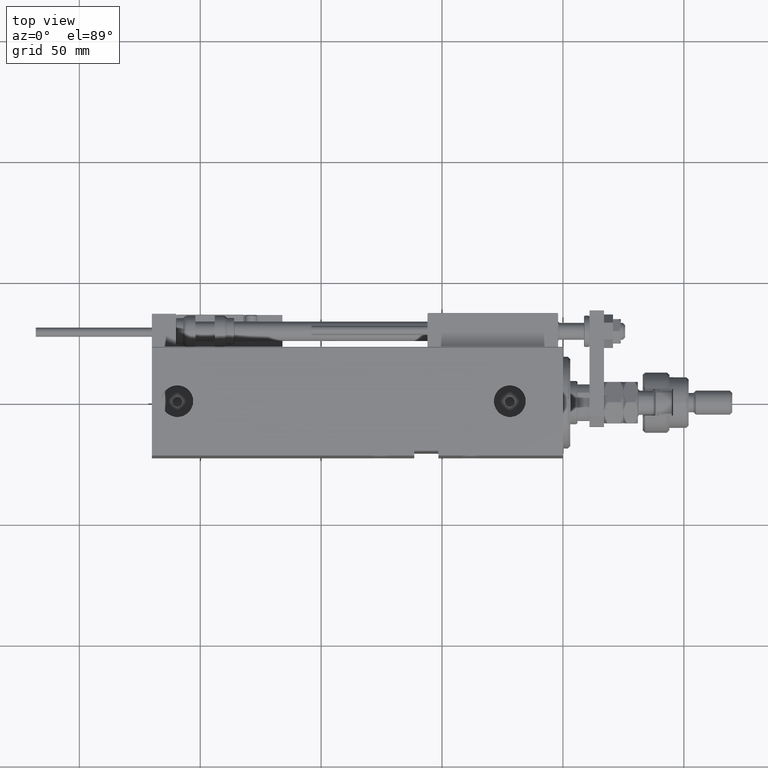
[diagram: clean part render]
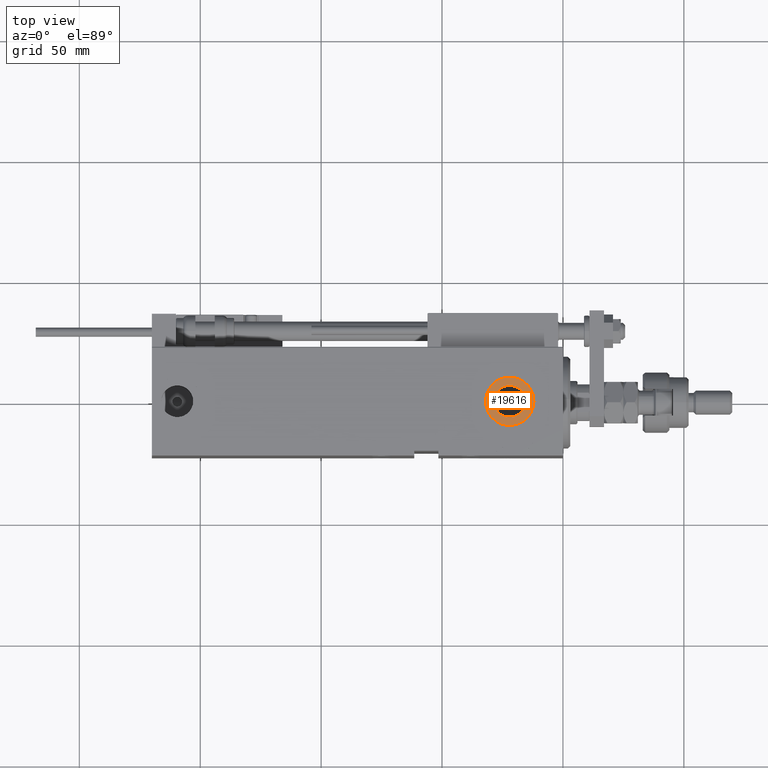
[diagram: same view with one face highlighted and labeled with its STEP entity id]
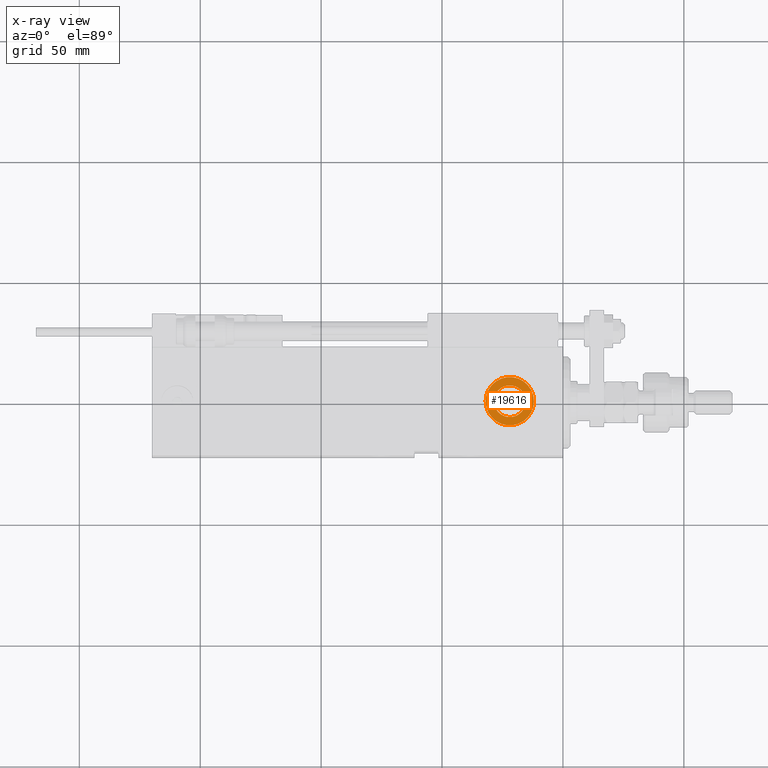
[diagram: x-ray of the same camera — body ghosted, the highlighted face saturated]
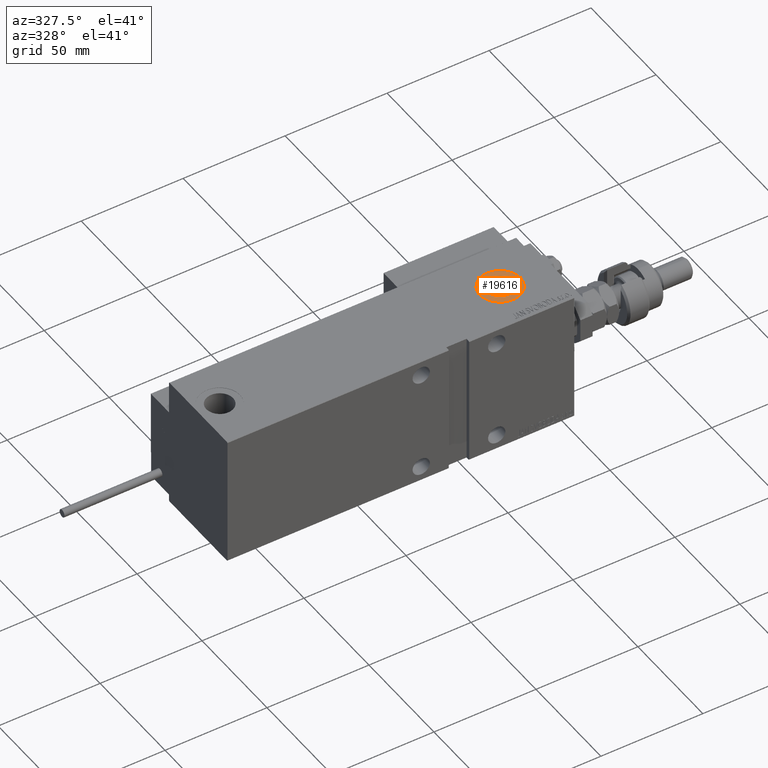
[diagram: same view with one face highlighted and labeled with its STEP entity id]
A machine part, top view. The second image highlights one B-rep face of the part: STEP entity #19616.
The next image is the same camera in x-ray: the body ghosted, the highlighted face saturated — about 0% of this face is hidden behind the body in this view.
A second angle (auxiliary view) of the same face is appended — the face is thin or edge-on in the first view.
In plain terms, the highlighted planar face has unit normal (0, -0, 1).
Its self-contained STEP definition (entity closure, byte-faithful):
#1216 = ORIENTED_EDGE ( 'NONE', *, *, #22655, .T. ) ;
#1376 = CARTESIAN_POINT ( 'NONE',  ( 32.00000000000000000, -5.011423375044110611E-15, 32.39999999999999858 ) ) ;
#1591 = DIRECTION ( 'NONE',  ( 0.000000000000000000, 0.000000000000000000, 1.000000000000000000 ) ) ;
#1870 = AXIS2_PLACEMENT_3D ( 'NONE', #30009, #18560, #38144 ) ;
#3322 = CARTESIAN_POINT ( 'NONE',  ( 22.00000000000000000, -5.011423375044110611E-15, 32.39999999999999858 ) ) ;
#4417 = CIRCLE ( 'NONE', #39075, 6.579999999999999183 ) ;
#4673 = VERTEX_POINT ( 'NONE', #21571 ) ;
#4819 = ORIENTED_EDGE ( 'NONE', *, *, #7926, .T. ) ;
#6473 = CIRCLE ( 'NONE', #21201, 10.00000000000000178 ) ;
#6477 = AXIS2_PLACEMENT_3D ( 'NONE', #46992, #39590, #42649 ) ;
#7926 = EDGE_CURVE ( 'NONE', #50619, #4673, #6473, .T. ) ;
#8612 = DIRECTION ( 'NONE',  ( 1.000000000000000000, 0.000000000000000000, 0.000000000000000000 ) ) ;
#9723 = PLANE ( 'NONE',  #26864 ) ;
#12681 = DIRECTION ( 'NONE',  ( 0.000000000000000000, 0.000000000000000000, 1.000000000000000000 ) ) ;
#14988 = DIRECTION ( 'NONE',  ( 0.000000000000000000, 0.000000000000000000, 1.000000000000000000 ) ) ;
#18560 = DIRECTION ( 'NONE',  ( 0.000000000000000000, 0.000000000000000000, 1.000000000000000000 ) ) ;
#19616 = ADVANCED_FACE ( 'NONE', ( #46672, #51035 ), #9723, .T. ) ;
#20151 = VERTEX_POINT ( 'NONE', #47687 ) ;
#21201 = AXIS2_PLACEMENT_3D ( 'NONE', #3322, #14988, #52242 ) ;
#21571 = CARTESIAN_POINT ( 'NONE',  ( 11.99999999999999822, -3.786776575896758341E-15, 32.39999999999999858 ) ) ;
#22655 = EDGE_CURVE ( 'NONE', #4673, #50619, #36869, .T. ) ;
#26843 = CARTESIAN_POINT ( 'NONE',  ( 15.41999999999999993, -4.205605781205152358E-15, 32.39999999999999858 ) ) ;
#26864 = AXIS2_PLACEMENT_3D ( 'NONE', #42586, #1591, #34713 ) ;
#26996 = CIRCLE ( 'NONE', #1870, 6.579999999999999183 ) ;
#30009 = CARTESIAN_POINT ( 'NONE',  ( 22.00000000000000000, -5.011423375044110611E-15, 32.39999999999999858 ) ) ;
#30720 = ORIENTED_EDGE ( 'NONE', *, *, #48270, .F. ) ;
#32790 = VERTEX_POINT ( 'NONE', #26843 ) ;
#34713 = DIRECTION ( 'NONE',  ( 1.000000000000000000, 0.000000000000000000, -0.000000000000000000 ) ) ;
#36813 = EDGE_LOOP ( 'NONE', ( #43799, #30720 ) ) ;
#36869 = CIRCLE ( 'NONE', #6477, 10.00000000000000178 ) ;
#38144 = DIRECTION ( 'NONE',  ( 1.000000000000000000, 0.000000000000000000, 0.000000000000000000 ) ) ;
#39075 = AXIS2_PLACEMENT_3D ( 'NONE', #53746, #12681, #8612 ) ;
#39590 = DIRECTION ( 'NONE',  ( 0.000000000000000000, 0.000000000000000000, 1.000000000000000000 ) ) ;
#42586 = CARTESIAN_POINT ( 'NONE',  ( 22.00000000000000000, -5.011423375044110611E-15, 32.39999999999999858 ) ) ;
#42649 = DIRECTION ( 'NONE',  ( 1.000000000000000000, 0.000000000000000000, 0.000000000000000000 ) ) ;
#43799 = ORIENTED_EDGE ( 'NONE', *, *, #47474, .F. ) ;
#46672 = FACE_BOUND ( 'NONE', #36813, .T. ) ;
#46992 = CARTESIAN_POINT ( 'NONE',  ( 22.00000000000000000, -5.011423375044110611E-15, 32.39999999999999858 ) ) ;
#47474 = EDGE_CURVE ( 'NONE', #20151, #32790, #4417, .T. ) ;
#47687 = CARTESIAN_POINT ( 'NONE',  ( 28.57999999999999829, -5.011423375044110611E-15, 32.39999999999999858 ) ) ;
#48270 = EDGE_CURVE ( 'NONE', #32790, #20151, #26996, .T. ) ;
#48407 = EDGE_LOOP ( 'NONE', ( #4819, #1216 ) ) ;
#50619 = VERTEX_POINT ( 'NONE', #1376 ) ;
#51035 = FACE_OUTER_BOUND ( 'NONE', #48407, .T. ) ;
#52242 = DIRECTION ( 'NONE',  ( 1.000000000000000000, 0.000000000000000000, 0.000000000000000000 ) ) ;
#53746 = CARTESIAN_POINT ( 'NONE',  ( 22.00000000000000000, -5.011423375044110611E-15, 32.39999999999999858 ) ) ;